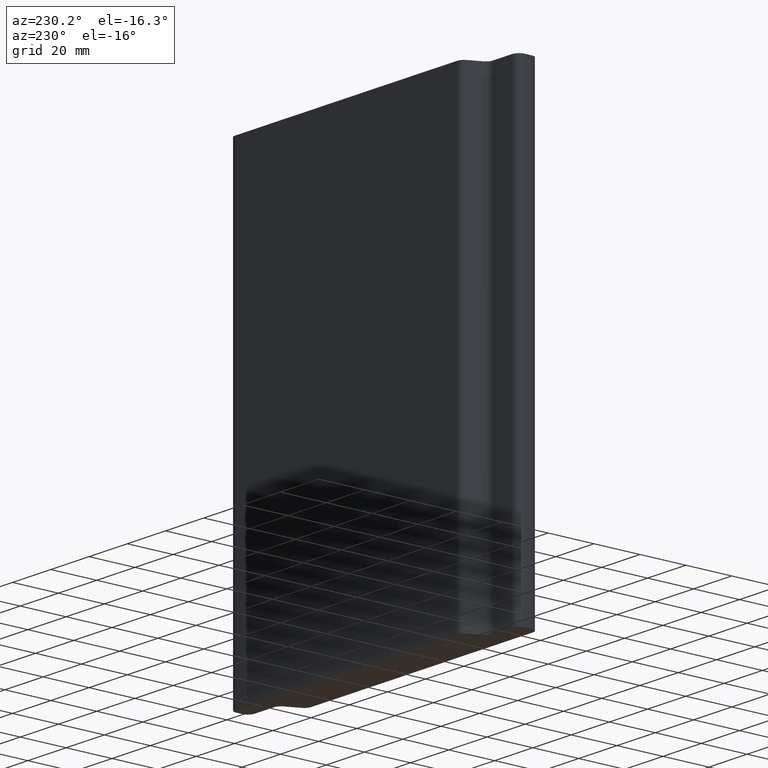
[diagram: clean part render]
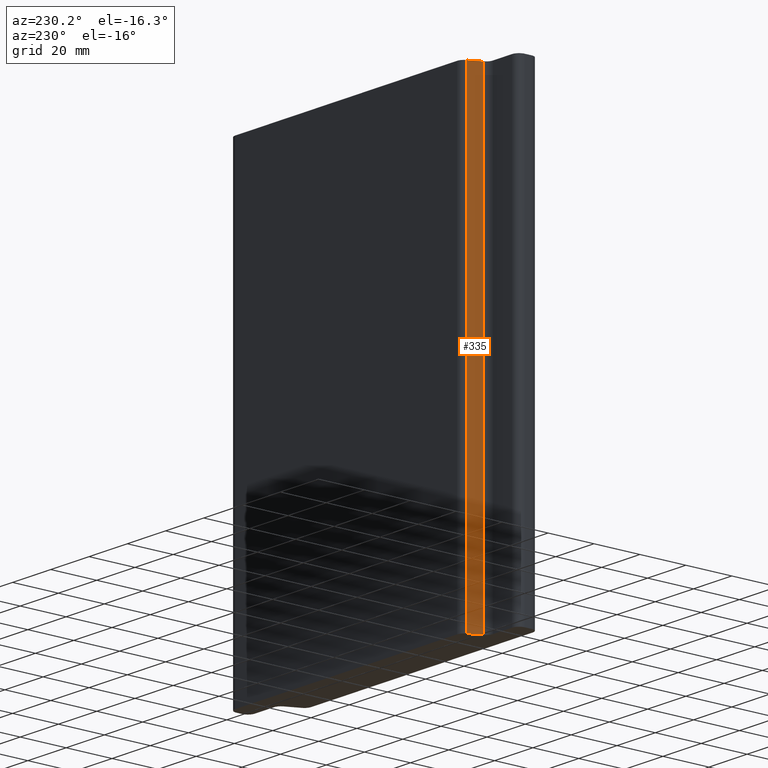
[diagram: same view with one face highlighted and labeled with its STEP entity id]
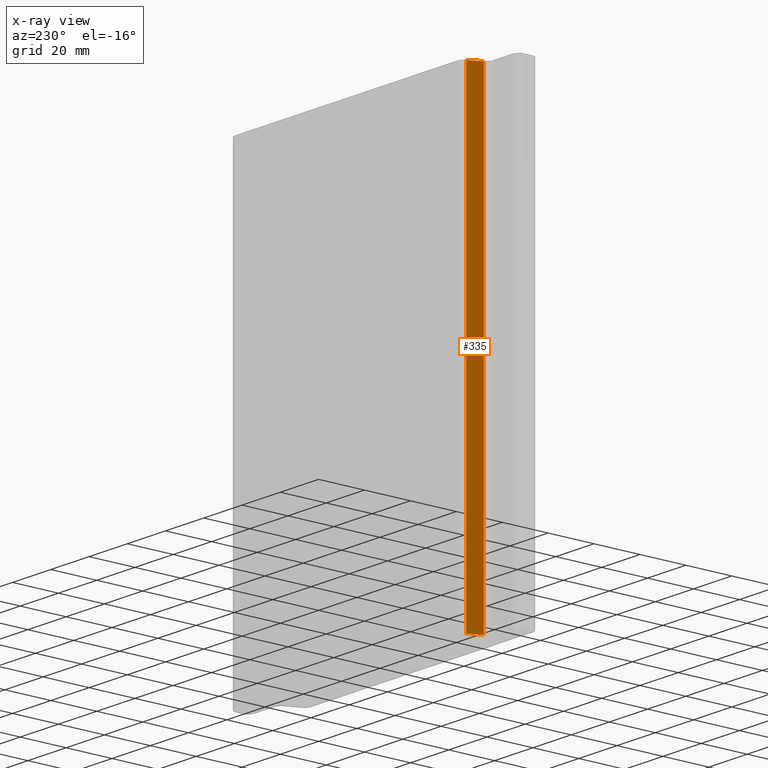
[diagram: x-ray of the same camera — body ghosted, the highlighted face saturated]
A machine part, auxiliary view. The second image highlights one B-rep face of the part: STEP entity #335.
The next image is the same camera in x-ray: the body ghosted, the highlighted face saturated — about 0% of this face is hidden behind the body in this view.
In plain terms, the highlighted planar face has unit normal (-0.9135, 0.4067, 0).
Its self-contained STEP definition (entity closure, byte-faithful):
#49=FACE_OUTER_BOUND('',#67,.T.);
#67=EDGE_LOOP('',(#259,#260,#261,#262));
#95=LINE('',#556,#127);
#96=LINE('',#559,#128);
#97=LINE('',#561,#129);
#98=LINE('',#562,#130);
#127=VECTOR('',#453,10.);
#128=VECTOR('',#456,10.);
#129=VECTOR('',#457,10.);
#130=VECTOR('',#458,10.);
#159=VERTEX_POINT('',#552);
#160=VERTEX_POINT('',#554);
#161=VERTEX_POINT('',#558);
#162=VERTEX_POINT('',#560);
#201=EDGE_CURVE('',#159,#160,#95,.T.);
#202=EDGE_CURVE('',#161,#159,#96,.T.);
#203=EDGE_CURVE('',#162,#160,#97,.T.);
#204=EDGE_CURVE('',#161,#162,#98,.T.);
#259=ORIENTED_EDGE('',*,*,#202,.T.);
#260=ORIENTED_EDGE('',*,*,#201,.T.);
#261=ORIENTED_EDGE('',*,*,#203,.F.);
#262=ORIENTED_EDGE('',*,*,#204,.F.);
#320=PLANE('',#377);
#335=ADVANCED_FACE('',(#49),#320,.T.);
#377=AXIS2_PLACEMENT_3D('',#557,#454,#455);
#453=DIRECTION('',(0.,0.,1.));
#454=DIRECTION('center_axis',(-0.913545457702009,0.406736642942366,0.));
#455=DIRECTION('ref_axis',(-0.406736642942366,-0.913545457702009,0.));
#456=DIRECTION('',(-0.406736642942366,-0.913545457702009,0.));
#457=DIRECTION('',(-0.406736642942366,-0.913545457702009,0.));
#458=DIRECTION('',(0.,0.,1.));
#552=CARTESIAN_POINT('',(-63.1852268784075,10.779790095361,0.));
#554=CARTESIAN_POINT('',(-63.1852268784075,10.779790095361,200.));
#556=CARTESIAN_POINT('',(-63.1852268784075,10.779790095361,0.));
#557=CARTESIAN_POINT('Origin',(-60.7629959023434,16.2202099446295,0.));
#558=CARTESIAN_POINT('',(-60.7629959023434,16.2202099446295,0.));
#559=CARTESIAN_POINT('',(-60.7629959023434,16.2202099446295,0.));
#560=CARTESIAN_POINT('',(-60.7629959023434,16.2202099446295,200.));
#561=CARTESIAN_POINT('',(-60.7629959023434,16.2202099446295,200.));
#562=CARTESIAN_POINT('',(-60.7629959023434,16.2202099446295,0.));